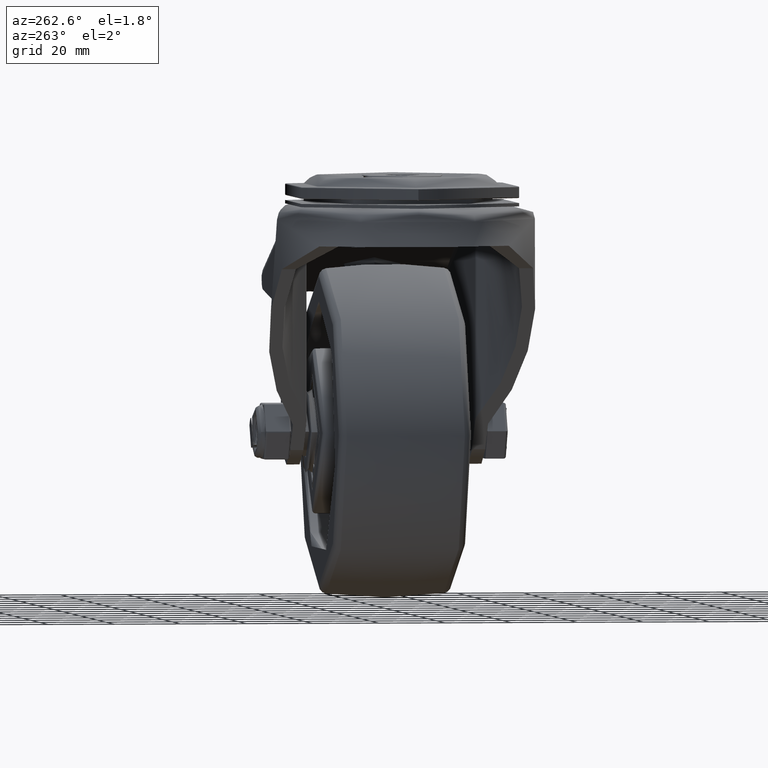
[diagram: clean part render]
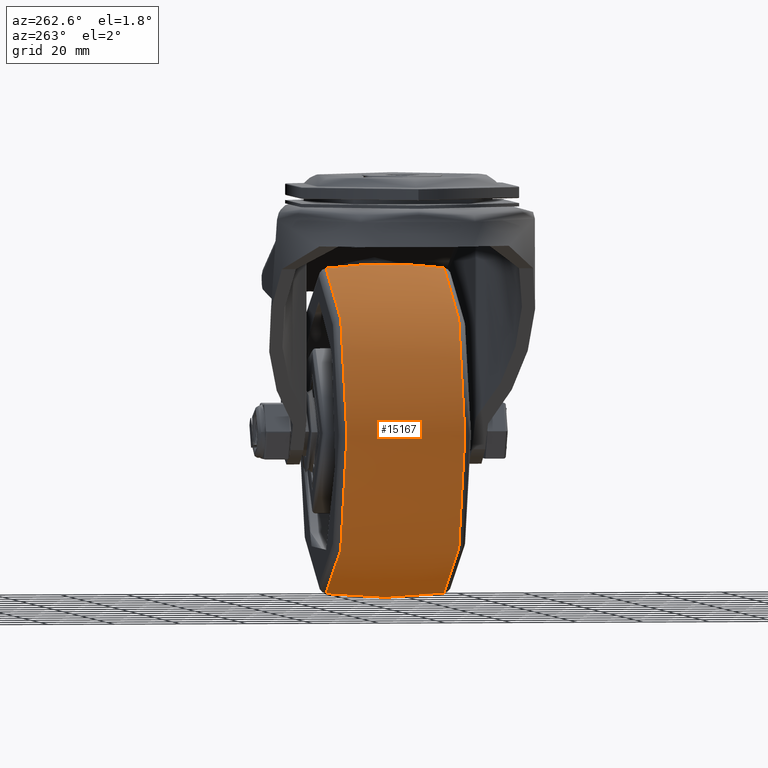
[diagram: same view with one face highlighted and labeled with its STEP entity id]
A machine part, auxiliary view. The second image highlights one B-rep face of the part: STEP entity #15167.
In plain terms, the highlighted face is a freeform B-spline surface patch.
Its self-contained STEP definition (entity closure, byte-faithful):
#65=(
BOUNDED_SURFACE()
B_SPLINE_SURFACE(2,2,((#24567,#24568,#24569,#24570,#24571,#24572,#24573,
#24574,#24575),(#24576,#24577,#24578,#24579,#24580,#24581,#24582,#24583,
#24584),(#24585,#24586,#24587,#24588,#24589,#24590,#24591,#24592,#24593)),
 .UNSPECIFIED.,.F.,.T.,.F.)
B_SPLINE_SURFACE_WITH_KNOTS((3,3),(3,2,2,2,3),(-0.133390787694184,0.133390787694184),
(-3.14159265358979,-1.5707963267949,0.,1.5707963267949,3.14159265358979),
 .UNSPECIFIED.)
GEOMETRIC_REPRESENTATION_ITEM()
RATIONAL_B_SPLINE_SURFACE(((1.,0.707106781186548,1.,0.707106781186548,1.,
0.707106781186548,1.,0.707106781186548,1.),(0.99111663249473,0.700825291783799,
0.99111663249473,0.700825291783799,0.99111663249473,0.700825291783799,0.99111663249473,
0.700825291783799,0.99111663249473),(1.,0.707106781186548,1.,0.707106781186548,
1.,0.707106781186548,1.,0.707106781186548,1.)))
REPRESENTATION_ITEM('')
SURFACE()
);
#2052=FACE_OUTER_BOUND('',#2971,.T.);
#2971=EDGE_LOOP('',(#11892,#11893,#11894,#11895));
#6089=CIRCLE('',#16654,48.8088884736692);
#6090=CIRCLE('',#16655,134.083333333332);
#6091=CIRCLE('',#16656,48.8088884736692);
#6990=VERTEX_POINT('',#24564);
#6991=VERTEX_POINT('',#24594);
#8774=EDGE_CURVE('',#6990,#6990,#6089,.T.);
#8775=EDGE_CURVE('',#6990,#6991,#6090,.T.);
#8776=EDGE_CURVE('',#6991,#6991,#6091,.T.);
#11892=ORIENTED_EDGE('',*,*,#8774,.F.);
#11893=ORIENTED_EDGE('',*,*,#8775,.T.);
#11894=ORIENTED_EDGE('',*,*,#8776,.T.);
#11895=ORIENTED_EDGE('',*,*,#8775,.F.);
#15167=ADVANCED_FACE('',(#2052),#65,.F.);
#16654=AXIS2_PLACEMENT_3D('',#24566,#19297,#19298);
#16655=AXIS2_PLACEMENT_3D('',#24595,#19299,#19300);
#16656=AXIS2_PLACEMENT_3D('',#24596,#19301,#19302);
#19297=DIRECTION('center_axis',(-3.49148336110938E-15,1.,0.));
#19298=DIRECTION('ref_axis',(-1.,-3.49148336110938E-15,0.));
#19299=DIRECTION('center_axis',(1.,3.49148336110938E-15,-1.22464679914735E-16));
#19300=DIRECTION('ref_axis',(1.22464679914735E-16,4.73316543132609E-31,
1.));
#19301=DIRECTION('center_axis',(-3.49148336110938E-15,1.,0.));
#19302=DIRECTION('ref_axis',(-1.,-3.49148336110938E-15,0.));
#24564=CARTESIAN_POINT('',(-5.62844734370772E-14,17.8324889170361,48.8088884736692));
#24566=CARTESIAN_POINT('Origin',(-6.22618383409991E-14,17.8324889170361,
0.));
#24567=CARTESIAN_POINT('Ctrl Pts',(6.22618383409992E-14,-17.8324889170362,
48.808888473669));
#24568=CARTESIAN_POINT('Ctrl Pts',(48.808888473669,-17.832488917036,48.808888473669));
#24569=CARTESIAN_POINT('Ctrl Pts',(48.8088884736691,-17.832488917036,0.));
#24570=CARTESIAN_POINT('Ctrl Pts',(48.808888473669,-17.832488917036,-48.808888473669));
#24571=CARTESIAN_POINT('Ctrl Pts',(6.22618383409992E-14,-17.8324889170362,
-48.808888473669));
#24572=CARTESIAN_POINT('Ctrl Pts',(-48.8088884736689,-17.8324889170363,
-48.808888473669));
#24573=CARTESIAN_POINT('Ctrl Pts',(-48.8088884736689,-17.8324889170363,
0.));
#24574=CARTESIAN_POINT('Ctrl Pts',(-48.8088884736689,-17.8324889170363,
48.808888473669));
#24575=CARTESIAN_POINT('Ctrl Pts',(6.22618383409992E-14,-17.8324889170362,
48.808888473669));
#24576=CARTESIAN_POINT('Ctrl Pts',(-2.28500754545608E-28,6.66133814775094E-14,
51.2017874458755));
#24577=CARTESIAN_POINT('Ctrl Pts',(51.2017874458755,2.45383570403843E-13,
51.2017874458755));
#24578=CARTESIAN_POINT('Ctrl Pts',(51.2017874458755,2.45383570403843E-13,
-4.0787585103477E-30));
#24579=CARTESIAN_POINT('Ctrl Pts',(51.2017874458755,2.45383570403843E-13,
-51.2017874458755));
#24580=CARTESIAN_POINT('Ctrl Pts',(-2.36658271566304E-28,6.66133814775094E-14,
-51.2017874458755));
#24581=CARTESIAN_POINT('Ctrl Pts',(-51.2017874458755,-1.12156807448824E-13,
-51.2017874458755));
#24582=CARTESIAN_POINT('Ctrl Pts',(-51.2017874458755,-1.12156807448824E-13,
4.0787585103477E-30));
#24583=CARTESIAN_POINT('Ctrl Pts',(-51.2017874458755,-1.12156807448824E-13,
51.2017874458755));
#24584=CARTESIAN_POINT('Ctrl Pts',(-2.28500754545608E-28,6.66133814775094E-14,
51.2017874458755));
#24585=CARTESIAN_POINT('Ctrl Pts',(-6.22618383409989E-14,17.8324889170361,
48.808888473669));
#24586=CARTESIAN_POINT('Ctrl Pts',(48.8088884736689,17.8324889170362,48.808888473669));
#24587=CARTESIAN_POINT('Ctrl Pts',(48.8088884736689,17.8324889170362,0.));
#24588=CARTESIAN_POINT('Ctrl Pts',(48.8088884736689,17.8324889170362,-48.808888473669));
#24589=CARTESIAN_POINT('Ctrl Pts',(-6.22618383409989E-14,17.8324889170361,
-48.808888473669));
#24590=CARTESIAN_POINT('Ctrl Pts',(-48.808888473669,17.8324889170359,-48.808888473669));
#24591=CARTESIAN_POINT('Ctrl Pts',(-48.8088884736691,17.8324889170359,0.));
#24592=CARTESIAN_POINT('Ctrl Pts',(-48.808888473669,17.8324889170359,48.808888473669));
#24593=CARTESIAN_POINT('Ctrl Pts',(-6.22618383409989E-14,17.8324889170361,
48.808888473669));
#24594=CARTESIAN_POINT('',(6.82392032449212E-14,-17.8324889170362,48.8088884736692));
#24595=CARTESIAN_POINT('Origin',(-1.02972385028303E-14,-5.51208384491625E-14,
-84.0833333333322));
#24596=CARTESIAN_POINT('Origin',(6.22618383409995E-14,-17.8324889170362,
0.));